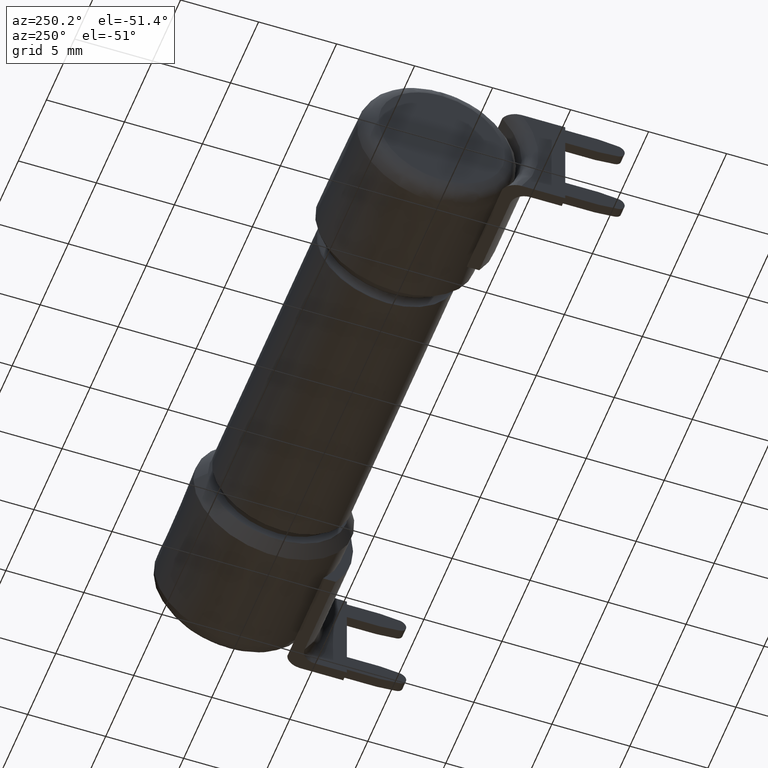
[diagram: clean part render]
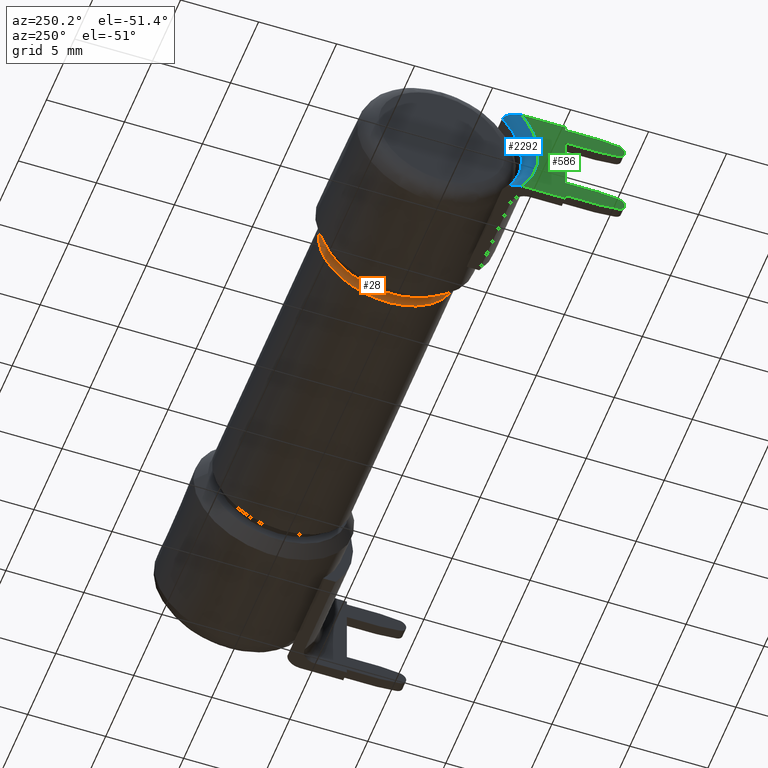
[diagram: same view with three faces highlighted in distinct colors, each labeled with its STEP entity id]
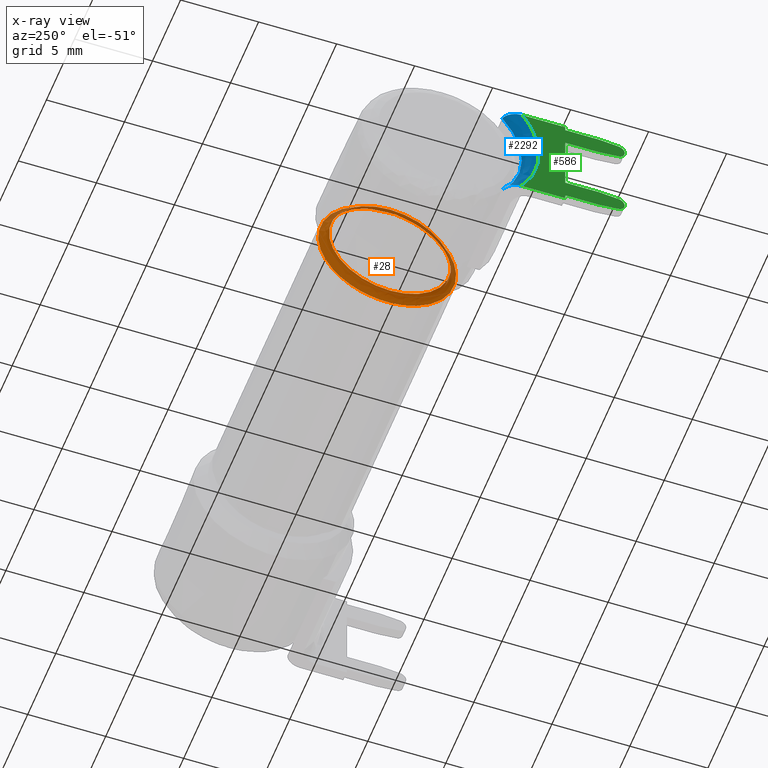
[diagram: x-ray of the same camera — body ghosted, the three highlighted faces saturated]
A machine part, auxiliary view with three faces highlighted in distinct colors.
The next image is the same camera in x-ray (body ghosted, the three faces saturated) — at least one of them is partly hidden behind the body in this view.
Their STEP definitions:

[orange] entity #28 — the highlighted face is a freeform B-spline surface patch.
#28 = ADVANCED_FACE ( 'NONE', ( #1455, #228 ), #1931, .F. ) ;
#67 = EDGE_LOOP ( 'NONE', ( #1579 ) ) ;
#113 = CARTESIAN_POINT ( 'NONE',  ( 0.3367157287525391900, -1.521581727583806400E-018, -0.1540000000000000800 ) ) ;
#121 = CARTESIAN_POINT ( 'NONE',  ( 0.3367157287525391900, 0.3080000000000001600, -0.1540000000000000800 ) ) ;
#127 = CARTESIAN_POINT ( 'NONE',  ( 0.3367157287525391900, 0.3080000000000001600, 0.1540000000000000800 ) ) ;
#136 = CARTESIAN_POINT ( 'NONE',  ( 0.3367157287525391900, 1.521581727583806800E-018, 0.1540000000000000800 ) ) ;
#167 = CARTESIAN_POINT ( 'NONE',  ( 0.3450000000000009700, 1.603433648080468300E-018, 0.1622842712474619800 ) ) ;
#179 = EDGE_LOOP ( 'NONE', ( #219 ) ) ;
#196 = CARTESIAN_POINT ( 'NONE',  ( 0.3450000000000010300, -0.3245685424949239500, 0.1622842712474619800 ) ) ;
#219 = ORIENTED_EDGE ( 'NONE', *, *, #2790, .F. ) ;
#221 = CARTESIAN_POINT ( 'NONE',  ( 0.3450000000000010300, -0.3245685424949239500, -0.1622842712474619800 ) ) ;
#228 = FACE_OUTER_BOUND ( 'NONE', #179, .T. ) ;
#233 = CARTESIAN_POINT ( 'NONE',  ( 0.3250000000000010100, -0.3080000000000001100, 0.1540000000000000500 ) ) ;
#307 = CARTESIAN_POINT ( 'NONE',  ( 0.3450000000000010300, -0.3479999999999998600, 0.1740000000000000200 ) ) ;
#345 = CARTESIAN_POINT ( 'NONE',  ( 0.3450000000000009700, -1.603433648080468100E-018, -0.1622842712474619800 ) ) ;
#358 = CARTESIAN_POINT ( 'NONE',  ( 0.3367157287525391900, -0.3080000000000001600, -0.1540000000000000800 ) ) ;
#388 = CARTESIAN_POINT ( 'NONE',  ( 0.3250000000000011200, 1.521581727583806200E-018, 0.1540000000000000500 ) ) ;
#399 = CARTESIAN_POINT ( 'NONE',  ( 0.3450000000000010300, 0.3245685424949239500, -0.1622842712474619800 ) ) ;
#406 = CARTESIAN_POINT ( 'NONE',  ( 0.3450000000000010300, 0.3245685424949239500, 0.1622842712474619800 ) ) ;
#419 = CARTESIAN_POINT ( 'NONE',  ( 0.3450000000000009700, 1.603433648080468300E-018, 0.1622842712474619800 ) ) ;
#429 = CARTESIAN_POINT ( 'NONE',  ( 0.3450000000000010300, 1.719189744153131700E-018, 0.1740000000000000200 ) ) ;
#438 = CARTESIAN_POINT ( 'NONE',  ( 0.3450000000000010300, -1.719189744153131200E-018, -0.1740000000000000200 ) ) ;
#566 = CARTESIAN_POINT ( 'NONE',  ( 0.3450000000000010300, -0.3480000000000000300, -0.1740000000000000200 ) ) ;
#595 = CARTESIAN_POINT ( 'NONE',  ( 0.3450000000000010300, -0.3480000000000000300, 0.1740000000000000200 ) ) ;
#605 = CARTESIAN_POINT ( 'NONE',  ( 0.3250000000000010100, -0.3080000000000001100, -0.1540000000000000500 ) ) ;
#672 =( BOUNDED_CURVE ( )  B_SPLINE_CURVE ( 3, ( #1094, #889, #1313, #2773, #1525, #307, #839 ),
 .UNSPECIFIED., .T., .T. ) 
 B_SPLINE_CURVE_WITH_KNOTS ( ( 4, 3, 4 ),
 ( 0.0000000000000000000, 0.5000000000000000000, 1.000000000000000000 ),
 .UNSPECIFIED. ) 
 CURVE ( )  GEOMETRIC_REPRESENTATION_ITEM ( )  RATIONAL_B_SPLINE_CURVE ( ( 1.000000000000000000, 0.3333333333333333700, 0.3333333333333333700, 1.000000000000000000, 0.3333333333333333700, 0.3333333333333333700, 1.000000000000000000 ) ) 
 REPRESENTATION_ITEM ( '' )  );
#767 = VERTEX_POINT ( 'NONE', #920 ) ;
#820 = CARTESIAN_POINT ( 'NONE',  ( 0.3250000000000011200, 1.521581727583806200E-018, 0.1540000000000000500 ) ) ;
#839 = CARTESIAN_POINT ( 'NONE',  ( 0.3450000000000010300, 1.719189744153131400E-018, 0.1740000000000000200 ) ) ;
#878 = CARTESIAN_POINT ( 'NONE',  ( 0.3250000000000010100, 0.3080000000000001100, 0.1540000000000000500 ) ) ;
#889 = CARTESIAN_POINT ( 'NONE',  ( 0.3450000000000010300, 0.3479999999999998600, 0.1740000000000000200 ) ) ;
#912 = CARTESIAN_POINT ( 'NONE',  ( 0.3250000000000011200, 2.304929804786274200E-034, -3.888050435743406300E-018 ) ) ;
#920 = CARTESIAN_POINT ( 'NONE',  ( 0.3450000000000010300, 1.719189744153131400E-018, 0.1740000000000000200 ) ) ;
#1036 = CARTESIAN_POINT ( 'NONE',  ( 0.3450000000000010300, 1.719189744153131700E-018, 0.1740000000000000200 ) ) ;
#1094 = CARTESIAN_POINT ( 'NONE',  ( 0.3450000000000010300, 1.719189744153131400E-018, 0.1740000000000000200 ) ) ;
#1102 = CARTESIAN_POINT ( 'NONE',  ( 0.3367157287525391900, 1.521581727583806800E-018, 0.1540000000000000800 ) ) ;
#1122 = DIRECTION ( 'NONE',  ( 0.0000000000000000000, 9.880400828466269600E-018, 1.000000000000000000 ) ) ;
#1268 = VERTEX_POINT ( 'NONE', #1347 ) ;
#1313 = CARTESIAN_POINT ( 'NONE',  ( 0.3450000000000010300, 0.3479999999999998600, -0.1739999999999999300 ) ) ;
#1347 = CARTESIAN_POINT ( 'NONE',  ( 0.3250000000000011200, 1.521581727583806200E-018, 0.1540000000000000500 ) ) ;
#1455 = FACE_OUTER_BOUND ( 'NONE', #67, .T. ) ;
#1512 = CARTESIAN_POINT ( 'NONE',  ( 0.3250000000000010100, 0.3080000000000001100, -0.1540000000000000500 ) ) ;
#1525 = CARTESIAN_POINT ( 'NONE',  ( 0.3450000000000010300, -0.3479999999999998600, -0.1740000000000000400 ) ) ;
#1579 = ORIENTED_EDGE ( 'NONE', *, *, #2346, .T. ) ;
#1632 = AXIS2_PLACEMENT_3D ( 'NONE', #912, #2391, #1122 ) ;
#1931 =( BOUNDED_SURFACE ( )  B_SPLINE_SURFACE ( 3, 3, ( 
 ( #1036, #2746, #2754, #438, #566, #595, #429 ),
 ( #419, #406, #399, #345, #221, #196, #167 ),
 ( #136, #127, #121, #113, #358, #2310, #1102 ),
 ( #388, #878, #1512, #2118, #605, #233, #820 ) ),
 .UNSPECIFIED., .F., .T., .F. ) 
 B_SPLINE_SURFACE_WITH_KNOTS ( ( 4, 4 ),
 ( 4, 3, 4 ),
 ( 0.0000000000000000000, 1.000000000000000000 ),
 ( 0.0000000000000000000, 0.5000000000000000000, 1.000000000000000000 ),
 .UNSPECIFIED. ) 
 GEOMETRIC_REPRESENTATION_ITEM ( )  RATIONAL_B_SPLINE_SURFACE ( (
 ( 1.000000000000000000, 0.3333333333333333100, 0.3333333333333333100, 1.000000000000000000, 0.3333333333333333100, 0.3333333333333333100, 1.000000000000000000),
 ( 0.8047378541243658300, 0.2682459513747885700, 0.2682459513747885700, 0.8047378541243658300, 0.2682459513747885700, 0.2682459513747885700, 0.8047378541243658300),
 ( 0.8047378541243658300, 0.2682459513747885700, 0.2682459513747885700, 0.8047378541243658300, 0.2682459513747885700, 0.2682459513747885700, 0.8047378541243658300),
 ( 1.000000000000000000, 0.3333333333333333100, 0.3333333333333333100, 1.000000000000000000, 0.3333333333333333100, 0.3333333333333333100, 1.000000000000000000) ) ) 
 REPRESENTATION_ITEM ( '' )  SURFACE ( )  );
#2118 = CARTESIAN_POINT ( 'NONE',  ( 0.3250000000000011200, -1.521581727583805900E-018, -0.1540000000000000500 ) ) ;
#2293 = CIRCLE ( 'NONE', #1632, 0.1540000000000000500 ) ;
#2310 = CARTESIAN_POINT ( 'NONE',  ( 0.3367157287525391900, -0.3080000000000001600, 0.1540000000000000800 ) ) ;
#2346 = EDGE_CURVE ( 'NONE', #767, #767, #672, .T. ) ;
#2391 = DIRECTION ( 'NONE',  ( -1.000000000000000000, -7.092091707034666800E-034, 1.196323210997966800E-017 ) ) ;
#2746 = CARTESIAN_POINT ( 'NONE',  ( 0.3450000000000010300, 0.3480000000000000300, 0.1740000000000000200 ) ) ;
#2754 = CARTESIAN_POINT ( 'NONE',  ( 0.3450000000000010300, 0.3480000000000000300, -0.1740000000000000200 ) ) ;
#2773 = CARTESIAN_POINT ( 'NONE',  ( 0.3450000000000010300, 1.958966456101081600E-017, -0.1740000000000000200 ) ) ;
#2790 = EDGE_CURVE ( 'NONE', #1268, #1268, #2293, .T. ) ;

[blue] entity #2292 — the highlighted face is a freeform B-spline surface patch.
#76 = EDGE_CURVE ( 'NONE', #290, #2452, #1033, .T. ) ;
#102 = CARTESIAN_POINT ( 'NONE',  ( -0.04480410876658052300, -0.1528217038184248900, 0.1349999999999999500 ) ) ;
#173 = CARTESIAN_POINT ( 'NONE',  ( -0.03886467965809169100, -0.1795204087300547600, 0.09477376616918201100 ) ) ;
#181 = CARTESIAN_POINT ( 'NONE',  ( -0.03636666822174208800, -0.2023406079578015900, 0.01223636625260200000 ) ) ;
#188 = CARTESIAN_POINT ( 'NONE',  ( -0.06574999999999996100, -0.2586681438131220900, 0.06337155693994300800 ) ) ;
#290 = VERTEX_POINT ( 'NONE', #1554 ) ;
#325 = ORIENTED_EDGE ( 'NONE', *, *, #76, .T. ) ;
#375 = CARTESIAN_POINT ( 'NONE',  ( -0.06575000000000003100, -0.1914062327531388900, -0.1350000000000000400 ) ) ;
#402 = CARTESIAN_POINT ( 'NONE',  ( -0.03605811202095184800, -0.1499078813006984900, 0.1358539329571317200 ) ) ;
#411 = CARTESIAN_POINT ( 'NONE',  ( -0.03840046856510641300, -0.1849167648398026800, 0.08359812345623839100 ) ) ;
#543 = CARTESIAN_POINT ( 'NONE',  ( -0.06575000000000001700, -0.1914062327531387300, 0.1349999999999999800 ) ) ;
#604 = CARTESIAN_POINT ( 'NONE',  ( -0.06574999999999996100, -0.2504788217430016200, -0.05124546875908026600 ) ) ;
#624 = ORIENTED_EDGE ( 'NONE', *, *, #2402, .T. ) ;
#632 = CARTESIAN_POINT ( 'NONE',  ( -0.05370132552078879500, -0.2248297999702810700, -0.05508144242495562800 ) ) ;
#754 = B_SPLINE_CURVE_WITH_KNOTS ( 'NONE', 3,
 ( #1281, #1069, #1077, #173, #411, #1936, #2131, #2554, #181, #1947, #1486, #2563, #2549, #870, #2513, #2631 ),
 .UNSPECIFIED., .F., .F.,
 ( 4, 2, 2, 2, 2, 2, 2, 4 ),
 ( 9.697399036122160600E-019, 0.0009324435576780072100, 0.001864887115356013300, 0.002797330673034020700, 0.003729774230712027500, 0.004662217788390034400, 0.005594661346068041300, 0.007459548461424054200 ),
 .UNSPECIFIED. ) ;
#781 = CARTESIAN_POINT ( 'NONE',  ( -0.06575000000000001700, -0.1914062327531387300, 0.1349999999999999800 ) ) ;
#791 = B_SPLINE_CURVE_WITH_KNOTS ( 'NONE', 3,
 ( #543, #2069, #2269, #998, #2481, #1216, #2678, #1428, #102, #1633 ),
 .UNSPECIFIED., .F., .F.,
 ( 4, 2, 2, 2, 4 ),
 ( 0.0000000000000000000, 0.0003161851081782467100, 0.0006323702163564934200, 0.0009485553245347401300, 0.001264740432712986800 ),
 .UNSPECIFIED. ) ;
#847 = CARTESIAN_POINT ( 'NONE',  ( -0.06575000000000001700, -0.1914062327531387300, 0.1349999999999999800 ) ) ;
#868 = CARTESIAN_POINT ( 'NONE',  ( -0.05370132552078878100, -0.1508533081636547500, 0.1367107255189470300 ) ) ;
#870 = CARTESIAN_POINT ( 'NONE',  ( -0.03883901050353963400, -0.1804737158881119800, -0.09537204090548248600 ) ) ;
#919 = VERTEX_POINT ( 'NONE', #781 ) ;
#998 = CARTESIAN_POINT ( 'NONE',  ( -0.06309634949112813400, -0.1750216750690093400, 0.1349999999999998100 ) ) ;
#1033 = B_SPLINE_CURVE_WITH_KNOTS ( 'NONE', 3,
 ( #1776, #1792, #1981, #1594, #1585, #1578, #1572, #1564 ),
 .UNSPECIFIED., .F., .F.,
 ( 4, 2, 2, 4 ),
 ( 6.133173666733496700E-019, 0.0006332656974442398800, 0.0009498985461663607500, 0.001266531394888481700 ),
 .UNSPECIFIED. ) ;
#1069 = CARTESIAN_POINT ( 'NONE',  ( -0.04027197076061495700, -0.1597593599037437100, 0.1256812440212941900 ) ) ;
#1076 = CARTESIAN_POINT ( 'NONE',  ( -0.06575000000000000300, -0.2391328445326813800, -0.05858557010584834100 ) ) ;
#1077 = CARTESIAN_POINT ( 'NONE',  ( -0.03979790272542281500, -0.1669594607588686700, 0.1157635563439492100 ) ) ;
#1095 = EDGE_CURVE ( 'NONE', #1438, #290, #754, .T. ) ;
#1206 = FACE_OUTER_BOUND ( 'NONE', #2174, .T. ) ;
#1216 = CARTESIAN_POINT ( 'NONE',  ( -0.05736201709443261600, -0.1639275466260306500, 0.1349999999999999500 ) ) ;
#1281 = CARTESIAN_POINT ( 'NONE',  ( -0.04074999999999998800, -0.1516047492659778100, 0.1349999999999999800 ) ) ;
#1285 = CARTESIAN_POINT ( 'NONE',  ( -0.03605811202095186200, -0.2234207481233410900, -0.05473623637045900400 ) ) ;
#1294 = CARTESIAN_POINT ( 'NONE',  ( -0.06574999999999997500, -0.1604501747237614100, 0.1454078804313031500 ) ) ;
#1428 = CARTESIAN_POINT ( 'NONE',  ( -0.04848097428401223300, -0.1550380255862513500, 0.1349999999999999800 ) ) ;
#1438 = VERTEX_POINT ( 'NONE', #2205 ) ;
#1483 = CARTESIAN_POINT ( 'NONE',  ( -0.03605811202095187500, -0.1499078813006985700, -0.1358539329571316300 ) ) ;
#1486 = CARTESIAN_POINT ( 'NONE',  ( -0.03656121350754640300, -0.2011904216449090000, -0.02482115365949524500 ) ) ;
#1498 = ORIENTED_EDGE ( 'NONE', *, *, #1526, .T. ) ;
#1504 = CARTESIAN_POINT ( 'NONE',  ( -0.06574999999999996100, -0.2586681438131221400, -0.06337155693994285500 ) ) ;
#1526 = EDGE_CURVE ( 'NONE', #919, #1438, #791, .T. ) ;
#1554 = CARTESIAN_POINT ( 'NONE',  ( -0.04075000000000018900, -0.1516047492659779200, -0.1349999999999999000 ) ) ;
#1564 = CARTESIAN_POINT ( 'NONE',  ( -0.06575000000000003100, -0.1914062327531388900, -0.1350000000000000400 ) ) ;
#1572 = CARTESIAN_POINT ( 'NONE',  ( -0.06574999999999997500, -0.1871999715741219600, -0.1350000000000000400 ) ) ;
#1578 = CARTESIAN_POINT ( 'NONE',  ( -0.06520992544501907900, -0.1830757744049499600, -0.1349999999999998700 ) ) ;
#1585 = CARTESIAN_POINT ( 'NONE',  ( -0.06308515177149824600, -0.1749861101524384500, -0.1349999999999999500 ) ) ;
#1594 = CARTESIAN_POINT ( 'NONE',  ( -0.06150696010503835200, -0.1710864880827592800, -0.1350000000000042000 ) ) ;
#1633 = CARTESIAN_POINT ( 'NONE',  ( -0.04074999999999998800, -0.1516047492659778100, 0.1349999999999999800 ) ) ;
#1689 = CARTESIAN_POINT ( 'NONE',  ( -0.06575000000000003100, -0.1914062327531388900, -0.1350000000000000400 ) ) ;
#1701 = CARTESIAN_POINT ( 'NONE',  ( -0.03605811202095184800, -0.2234207481233410900, 0.05473623637045914300 ) ) ;
#1713 = CARTESIAN_POINT ( 'NONE',  ( -0.06574999999999994700, -0.1735577099473443200, 0.1572865768417071900 ) ) ;
#1776 = CARTESIAN_POINT ( 'NONE',  ( -0.04075000000000018900, -0.1516047492659779200, -0.1349999999999999000 ) ) ;
#1792 = CARTESIAN_POINT ( 'NONE',  ( -0.04885411320611315200, -0.1540374263418925700, -0.1349999999999999300 ) ) ;
#1933 = CARTESIAN_POINT ( 'NONE',  ( -0.05370132552078879500, -0.1508533081636548300, -0.1367107255189469700 ) ) ;
#1936 = CARTESIAN_POINT ( 'NONE',  ( -0.03754362665345822900, -0.1935740037652030300, 0.06054560891082740000 ) ) ;
#1947 = CARTESIAN_POINT ( 'NONE',  ( -0.03636936406294837000, -0.2023238238940914000, -0.01251439665372434100 ) ) ;
#1970 =( BOUNDED_CURVE ( )  B_SPLINE_CURVE ( 3, ( #375, #604, #2117, #847 ),
 .UNSPECIFIED., .F., .T. ) 
 B_SPLINE_CURVE_WITH_KNOTS ( ( 4, 4 ),
 ( 0.0000000000000000000, 1.000000000000000000 ),
 .UNSPECIFIED. ) 
 CURVE ( )  GEOMETRIC_REPRESENTATION_ITEM ( )  RATIONAL_B_SPLINE_CURVE ( ( 1.000000000000000000, 0.8781264195583427000, 0.8781264195583427000, 1.000000000000000000 ) ) 
 REPRESENTATION_ITEM ( '' )  );
#1981 = CARTESIAN_POINT ( 'NONE',  ( -0.05525130886932218300, -0.1602894455534828500, -0.1350000000000042000 ) ) ;
#2069 = CARTESIAN_POINT ( 'NONE',  ( -0.06574999999999993300, -0.1871978186142294600, 0.1349999999999999500 ) ) ;
#2117 = CARTESIAN_POINT ( 'NONE',  ( -0.06574999999999996100, -0.2504788217430015700, 0.05124546875908023200 ) ) ;
#2131 = CARTESIAN_POINT ( 'NONE',  ( -0.03715090508419018700, -0.1968278228779188300, 0.04875197760500900300 ) ) ;
#2136 = CARTESIAN_POINT ( 'NONE',  ( -0.05370132552078878100, -0.2248297999702810700, 0.05508144242495571100 ) ) ;
#2174 = EDGE_LOOP ( 'NONE', ( #325, #624, #1498, #2515 ) ) ;
#2205 = CARTESIAN_POINT ( 'NONE',  ( -0.04074999999999998800, -0.1516047492659778100, 0.1349999999999999800 ) ) ;
#2269 = CARTESIAN_POINT ( 'NONE',  ( -0.06520940420750358200, -0.1830808939007514100, 0.1349999999999997900 ) ) ;
#2292 = ADVANCED_FACE ( 'NONE', ( #1206 ), #2518, .T. ) ;
#2349 = CARTESIAN_POINT ( 'NONE',  ( -0.06575000000000001700, -0.1604501747237615000, -0.1454078804313031500 ) ) ;
#2402 = EDGE_CURVE ( 'NONE', #2452, #919, #1970, .T. ) ;
#2452 = VERTEX_POINT ( 'NONE', #1689 ) ;
#2481 = CARTESIAN_POINT ( 'NONE',  ( -0.06150759879442681300, -0.1710925314315015200, 0.1349999999999999500 ) ) ;
#2513 = CARTESIAN_POINT ( 'NONE',  ( -0.03979398311495292700, -0.1679132610020455400, -0.1163632988753087200 ) ) ;
#2515 = ORIENTED_EDGE ( 'NONE', *, *, #1095, .T. ) ;
#2518 =( BOUNDED_SURFACE ( )  B_SPLINE_SURFACE ( 3, 3, ( 
 ( #1483, #1285, #1701, #402 ),
 ( #1933, #632, #2136, #868 ),
 ( #2349, #1076, #2560, #1294 ),
 ( #2756, #1504, #188, #1713 ) ),
 .UNSPECIFIED., .F., .F., .F. ) 
 B_SPLINE_SURFACE_WITH_KNOTS ( ( 4, 4 ),
 ( 4, 4 ),
 ( 0.0000000000000000000, 1.000000000000000000 ),
 ( 0.0000000000000000000, 1.000000000000000000 ),
 .UNSPECIFIED. ) 
 GEOMETRIC_REPRESENTATION_ITEM ( )  RATIONAL_B_SPLINE_SURFACE ( (
 ( 1.000000000000000000, 0.8273247727986617900, 0.8273247727986617900, 1.000000000000000000),
 ( 0.8214427246825232200, 0.6795999155650822600, 0.6795999155650822600, 0.8214427246825232200),
 ( 0.8214427246825232200, 0.6795999155650822600, 0.6795999155650822600, 0.8214427246825232200),
 ( 1.000000000000000000, 0.8273247727986617900, 0.8273247727986617900, 1.000000000000000000) ) ) 
 REPRESENTATION_ITEM ( '' )  SURFACE ( )  );
#2549 = CARTESIAN_POINT ( 'NONE',  ( -0.03754721711560331200, -0.1935437512981716100, -0.06065440104516950400 ) ) ;
#2554 = CARTESIAN_POINT ( 'NONE',  ( -0.03655746672153072100, -0.2012155764409961400, 0.02463388382402540900 ) ) ;
#2560 = CARTESIAN_POINT ( 'NONE',  ( -0.06574999999999997500, -0.2391328445326813000, 0.05858557010584842400 ) ) ;
#2563 = CARTESIAN_POINT ( 'NONE',  ( -0.03715433780012714100, -0.1967998629796440800, -0.04885606485289232400 ) ) ;
#2631 = CARTESIAN_POINT ( 'NONE',  ( -0.04075000000000018900, -0.1516047492659779200, -0.1349999999999999000 ) ) ;
#2678 = CARTESIAN_POINT ( 'NONE',  ( -0.05472971747044105100, -0.1605672931036651900, 0.1349999999999999800 ) ) ;
#2756 = CARTESIAN_POINT ( 'NONE',  ( -0.06574999999999998900, -0.1735577099473444300, -0.1572865768417070800 ) ) ;

[green] entity #586 — the highlighted planar face has unit normal (-1, -0, 0).
#19 = VECTOR ( 'NONE', #1603, 39.37007874015748100 ) ;
#61 = DIRECTION ( 'NONE',  ( -1.000000000000000000, -6.712593418073705900E-017, 1.168039247375420600E-016 ) ) ;
#84 = ORIENTED_EDGE ( 'NONE', *, *, #2024, .T. ) ;
#117 = ORIENTED_EDGE ( 'NONE', *, *, #328, .T. ) ;
#132 = VECTOR ( 'NONE', #2384, 39.37007874015748100 ) ;
#164 = ORIENTED_EDGE ( 'NONE', *, *, #2402, .F. ) ;
#178 = DIRECTION ( 'NONE',  ( -1.000000000000000000, -6.712593418073792200E-017, 1.168039247375420600E-016 ) ) ;
#202 = LINE ( 'NONE', #875, #1383 ) ;
#205 = ORIENTED_EDGE ( 'NONE', *, *, #2320, .T. ) ;
#232 = LINE ( 'NONE', #1912, #2399 ) ;
#255 = LINE ( 'NONE', #1992, #132 ) ;
#303 = VECTOR ( 'NONE', #2520, 39.37007874015748100 ) ;
#328 = EDGE_CURVE ( 'NONE', #2108, #2732, #255, .T. ) ;
#375 = CARTESIAN_POINT ( 'NONE',  ( -0.06575000000000003100, -0.1914062327531388900, -0.1350000000000000400 ) ) ;
#377 = PLANE ( 'NONE',  #2465 ) ;
#398 = CARTESIAN_POINT ( 'NONE',  ( -0.06575000000000005800, -0.3016047492659777500, -1.985440091277341200E-017 ) ) ;
#420 = CARTESIAN_POINT ( 'NONE',  ( -0.06575000000000007200, 3.887038876620418400E-017, -1.985440091277340600E-017 ) ) ;
#433 = CARTESIAN_POINT ( 'NONE',  ( -0.06575000000000007200, -0.3016047492659779700, -0.07600000000000009500 ) ) ;
#441 = VECTOR ( 'NONE', #2611, 39.37007874015748100 ) ;
#446 = DIRECTION ( 'NONE',  ( 0.0000000000000000000, 0.9946155553023842100, 0.1036334750480264200 ) ) ;
#547 = LINE ( 'NONE', #2050, #19 ) ;
#552 = VECTOR ( 'NONE', #2288, 39.37007874015748100 ) ;
#553 = VERTEX_POINT ( 'NONE', #2552 ) ;
#556 = AXIS2_PLACEMENT_3D ( 'NONE', #854, #636, #622 ) ;
#586 = ADVANCED_FACE ( 'NONE', ( #904 ), #377, .T. ) ;
#591 = CARTESIAN_POINT ( 'NONE',  ( -0.06575000000000007200, -0.3016047492659779700, -0.1240000000000000400 ) ) ;
#604 = CARTESIAN_POINT ( 'NONE',  ( -0.06574999999999996100, -0.2504788217430016200, -0.05124546875908026600 ) ) ;
#617 = DIRECTION ( 'NONE',  ( 1.168039247375420600E-016, 0.0000000000000000000, 1.000000000000000000 ) ) ;
#622 = DIRECTION ( 'NONE',  ( 0.0000000000000000000, 0.0000000000000000000, 1.000000000000000000 ) ) ;
#630 = DIRECTION ( 'NONE',  ( 1.168039247375420600E-016, 0.0000000000000000000, 1.000000000000000000 ) ) ;
#635 = DIRECTION ( 'NONE',  ( -1.231264136253049400E-032, -1.000000000000000000, -1.054129079155256300E-016 ) ) ;
#636 = DIRECTION ( 'NONE',  ( -1.000000000000000000, -6.712593418073705900E-017, 1.168039247375420600E-016 ) ) ;
#652 = EDGE_CURVE ( 'NONE', #2783, #2108, #547, .T. ) ;
#670 = CARTESIAN_POINT ( 'NONE',  ( -0.06575000000000007200, -0.3016047492659779700, -0.1350000000000000600 ) ) ;
#689 = CARTESIAN_POINT ( 'NONE',  ( -0.06575000000000005800, -0.3016047492659779700, -1.985440091277341200E-017 ) ) ;
#780 = ORIENTED_EDGE ( 'NONE', *, *, #2474, .T. ) ;
#781 = CARTESIAN_POINT ( 'NONE',  ( -0.06575000000000001700, -0.1914062327531387300, 0.1349999999999999800 ) ) ;
#813 = CARTESIAN_POINT ( 'NONE',  ( -0.06575000000000003100, -0.3016047492659777500, 0.1239999999999999600 ) ) ;
#823 = CARTESIAN_POINT ( 'NONE',  ( -0.06575000000000005800, 3.887038876620418400E-017, 0.07599999999999991500 ) ) ;
#842 = DIRECTION ( 'NONE',  ( 0.0000000000000000000, -0.9946155553023842100, 0.1036334750480253600 ) ) ;
#847 = CARTESIAN_POINT ( 'NONE',  ( -0.06575000000000001700, -0.1914062327531387300, 0.1349999999999999800 ) ) ;
#854 = CARTESIAN_POINT ( 'NONE',  ( -0.06575000000000005800, -0.4326047492659777500, -0.1000000000000000900 ) ) ;
#875 = CARTESIAN_POINT ( 'NONE',  ( -0.06575000000000007200, -0.1516047492659780000, -0.1350000000000000100 ) ) ;
#891 = CARTESIAN_POINT ( 'NONE',  ( -0.06575000000000007200, -0.3856047492659724900, -0.1240000000000002200 ) ) ;
#893 = ORIENTED_EDGE ( 'NONE', *, *, #2383, .T. ) ;
#904 = FACE_OUTER_BOUND ( 'NONE', #1762, .T. ) ;
#919 = VERTEX_POINT ( 'NONE', #781 ) ;
#942 = LINE ( 'NONE', #398, #2013 ) ;
#954 = ORIENTED_EDGE ( 'NONE', *, *, #2677, .F. ) ;
#1067 = EDGE_CURVE ( 'NONE', #2712, #553, #1188, .T. ) ;
#1070 = LINE ( 'NONE', #1753, #2274 ) ;
#1131 = CARTESIAN_POINT ( 'NONE',  ( -0.06575000000000004500, -0.3016047492659779100, 0.07599999999999991500 ) ) ;
#1146 = LINE ( 'NONE', #1280, #2324 ) ;
#1187 = ORIENTED_EDGE ( 'NONE', *, *, #1423, .T. ) ;
#1188 = CIRCLE ( 'NONE', #556, 0.01899999999999998900 ) ;
#1208 = CARTESIAN_POINT ( 'NONE',  ( -0.06575000000000003100, -0.4345737852918901700, 0.08110230444925460600 ) ) ;
#1245 = EDGE_CURVE ( 'NONE', #2783, #2452, #202, .T. ) ;
#1280 = CARTESIAN_POINT ( 'NONE',  ( -0.06575000000000003100, -0.4345737852918900600, 0.1188976955507451800 ) ) ;
#1297 = LINE ( 'NONE', #2740, #1810 ) ;
#1383 = VECTOR ( 'NONE', #2145, 39.37007874015748100 ) ;
#1390 = CARTESIAN_POINT ( 'NONE',  ( -0.06575000000000003100, -0.4326047492659775800, 0.09999999999999989500 ) ) ;
#1399 = VERTEX_POINT ( 'NONE', #2192 ) ;
#1400 = EDGE_CURVE ( 'NONE', #1589, #1419, #2719, .T. ) ;
#1417 = ORIENTED_EDGE ( 'NONE', *, *, #652, .T. ) ;
#1419 = VERTEX_POINT ( 'NONE', #1131 ) ;
#1423 = EDGE_CURVE ( 'NONE', #2425, #1961, #1664, .T. ) ;
#1469 = DIRECTION ( 'NONE',  ( -6.712593418073792200E-017, 1.000000000000000000, 7.840572563984113900E-033 ) ) ;
#1485 = CARTESIAN_POINT ( 'NONE',  ( -0.06575000000000001700, -0.3856047492659788700, 0.1239999999999999200 ) ) ;
#1555 = CARTESIAN_POINT ( 'NONE',  ( -0.06575000000000003100, -0.3856047492659778800, 0.07599999999999991500 ) ) ;
#1589 = VERTEX_POINT ( 'NONE', #433 ) ;
#1595 = DIRECTION ( 'NONE',  ( 0.0000000000000000000, 0.0000000000000000000, 1.000000000000000000 ) ) ;
#1603 = DIRECTION ( 'NONE',  ( 1.168039247375420600E-016, 0.0000000000000000000, 1.000000000000000000 ) ) ;
#1606 = CARTESIAN_POINT ( 'NONE',  ( -0.06575000000000004500, -0.3016047492659777500, 0.1349999999999999800 ) ) ;
#1617 = ORIENTED_EDGE ( 'NONE', *, *, #2080, .T. ) ;
#1628 = VECTOR ( 'NONE', #1469, 39.37007874015748100 ) ;
#1638 = EDGE_CURVE ( 'NONE', #553, #1712, #1070, .T. ) ;
#1664 = LINE ( 'NONE', #1555, #441 ) ;
#1677 = ORIENTED_EDGE ( 'NONE', *, *, #2224, .T. ) ;
#1689 = CARTESIAN_POINT ( 'NONE',  ( -0.06575000000000003100, -0.1914062327531388900, -0.1350000000000000400 ) ) ;
#1692 = LINE ( 'NONE', #2083, #552 ) ;
#1712 = VERTEX_POINT ( 'NONE', #1794 ) ;
#1753 = CARTESIAN_POINT ( 'NONE',  ( -0.06575000000000005800, -0.4345737852918902800, -0.08110230444925480000 ) ) ;
#1762 = EDGE_LOOP ( 'NONE', ( #84, #780, #954, #164, #2579, #1417, #117, #1677, #2427, #2093, #893, #1897, #1617, #1187, #2760, #205 ) ) ;
#1794 = CARTESIAN_POINT ( 'NONE',  ( -0.06575000000000005800, -0.3856047492659782100, -0.07600000000000009500 ) ) ;
#1810 = VECTOR ( 'NONE', #635, 39.37007874015748100 ) ;
#1819 = EDGE_CURVE ( 'NONE', #1961, #1399, #2776, .T. ) ;
#1893 = VERTEX_POINT ( 'NONE', #1606 ) ;
#1897 = ORIENTED_EDGE ( 'NONE', *, *, #1400, .T. ) ;
#1912 = CARTESIAN_POINT ( 'NONE',  ( -0.06575000000000005800, -0.3856047492659781000, -0.1240000000000000700 ) ) ;
#1961 = VERTEX_POINT ( 'NONE', #1208 ) ;
#1970 =( BOUNDED_CURVE ( )  B_SPLINE_CURVE ( 3, ( #375, #604, #2117, #847 ),
 .UNSPECIFIED., .F., .T. ) 
 B_SPLINE_CURVE_WITH_KNOTS ( ( 4, 4 ),
 ( 0.0000000000000000000, 1.000000000000000000 ),
 .UNSPECIFIED. ) 
 CURVE ( )  GEOMETRIC_REPRESENTATION_ITEM ( )  RATIONAL_B_SPLINE_CURVE ( ( 1.000000000000000000, 0.8781264195583427000, 0.8781264195583427000, 1.000000000000000000 ) ) 
 REPRESENTATION_ITEM ( '' )  );
#1992 = CARTESIAN_POINT ( 'NONE',  ( -0.06575000000000008600, 3.887038876620418400E-017, -0.1240000000000000700 ) ) ;
#2013 = VECTOR ( 'NONE', #630, 39.37007874015748100 ) ;
#2024 = EDGE_CURVE ( 'NONE', #2576, #2070, #1692, .T. ) ;
#2050 = CARTESIAN_POINT ( 'NONE',  ( -0.06575000000000005800, -0.3016047492659779700, -1.985440091277341200E-017 ) ) ;
#2070 = VERTEX_POINT ( 'NONE', #813 ) ;
#2080 = EDGE_CURVE ( 'NONE', #1419, #2425, #2592, .T. ) ;
#2083 = CARTESIAN_POINT ( 'NONE',  ( -0.06575000000000005800, 3.887038876620418400E-017, 0.1239999999999999600 ) ) ;
#2093 = ORIENTED_EDGE ( 'NONE', *, *, #1638, .T. ) ;
#2108 = VERTEX_POINT ( 'NONE', #591 ) ;
#2117 = CARTESIAN_POINT ( 'NONE',  ( -0.06574999999999996100, -0.2504788217430015700, 0.05124546875908023200 ) ) ;
#2145 = DIRECTION ( 'NONE',  ( 0.0000000000000000000, 1.000000000000000000, 3.330669073875478500E-016 ) ) ;
#2179 = VECTOR ( 'NONE', #2397, 39.37007874015748100 ) ;
#2192 = CARTESIAN_POINT ( 'NONE',  ( -0.06575000000000003100, -0.4345737852918900600, 0.1188976955507452200 ) ) ;
#2224 = EDGE_CURVE ( 'NONE', #2732, #2712, #232, .T. ) ;
#2264 = LINE ( 'NONE', #2581, #1628 ) ;
#2274 = VECTOR ( 'NONE', #446, 39.37007874015748100 ) ;
#2288 = DIRECTION ( 'NONE',  ( -6.712593418073792200E-017, 1.000000000000000000, 7.840572563984113900E-033 ) ) ;
#2320 = EDGE_CURVE ( 'NONE', #1399, #2576, #1146, .T. ) ;
#2324 = VECTOR ( 'NONE', #2768, 39.37007874015748900 ) ;
#2350 = CARTESIAN_POINT ( 'NONE',  ( -0.06575000000000005800, -0.4345737852918903400, -0.1188976955507454100 ) ) ;
#2383 = EDGE_CURVE ( 'NONE', #1712, #1589, #2264, .T. ) ;
#2384 = DIRECTION ( 'NONE',  ( 6.712593418073792200E-017, -1.000000000000000000, -7.840572563984113900E-033 ) ) ;
#2397 = DIRECTION ( 'NONE',  ( 1.168039247375420600E-016, 0.0000000000000000000, 1.000000000000000000 ) ) ;
#2399 = VECTOR ( 'NONE', #842, 39.37007874015748900 ) ;
#2402 = EDGE_CURVE ( 'NONE', #2452, #919, #1970, .T. ) ;
#2425 = VERTEX_POINT ( 'NONE', #2737 ) ;
#2427 = ORIENTED_EDGE ( 'NONE', *, *, #1067, .T. ) ;
#2452 = VERTEX_POINT ( 'NONE', #1689 ) ;
#2465 = AXIS2_PLACEMENT_3D ( 'NONE', #420, #178, #617 ) ;
#2474 = EDGE_CURVE ( 'NONE', #2070, #1893, #942, .T. ) ;
#2520 = DIRECTION ( 'NONE',  ( 6.712593418073792200E-017, -1.000000000000000000, -7.840572563984113900E-033 ) ) ;
#2552 = CARTESIAN_POINT ( 'NONE',  ( -0.06575000000000005800, -0.4345737852918902800, -0.08110230444925481400 ) ) ;
#2576 = VERTEX_POINT ( 'NONE', #1485 ) ;
#2579 = ORIENTED_EDGE ( 'NONE', *, *, #1245, .F. ) ;
#2581 = CARTESIAN_POINT ( 'NONE',  ( -0.06575000000000007200, 3.887038876620418400E-017, -0.07600000000000009500 ) ) ;
#2592 = LINE ( 'NONE', #823, #303 ) ;
#2611 = DIRECTION ( 'NONE',  ( 0.0000000000000000000, -0.9946155553023842100, 0.1036334750480266000 ) ) ;
#2640 = AXIS2_PLACEMENT_3D ( 'NONE', #1390, #61, #1595 ) ;
#2677 = EDGE_CURVE ( 'NONE', #919, #1893, #1297, .T. ) ;
#2712 = VERTEX_POINT ( 'NONE', #2350 ) ;
#2719 = LINE ( 'NONE', #689, #2179 ) ;
#2732 = VERTEX_POINT ( 'NONE', #891 ) ;
#2737 = CARTESIAN_POINT ( 'NONE',  ( -0.06575000000000004500, -0.3856047492659790400, 0.07599999999999994300 ) ) ;
#2740 = CARTESIAN_POINT ( 'NONE',  ( -0.06575000000000005800, -0.1516047492659777200, 0.1349999999999999800 ) ) ;
#2760 = ORIENTED_EDGE ( 'NONE', *, *, #1819, .T. ) ;
#2768 = DIRECTION ( 'NONE',  ( 0.0000000000000000000, 0.9946155553023839900, 0.1036334750480277600 ) ) ;
#2776 = CIRCLE ( 'NONE', #2640, 0.01899999999999998900 ) ;
#2783 = VERTEX_POINT ( 'NONE', #670 ) ;